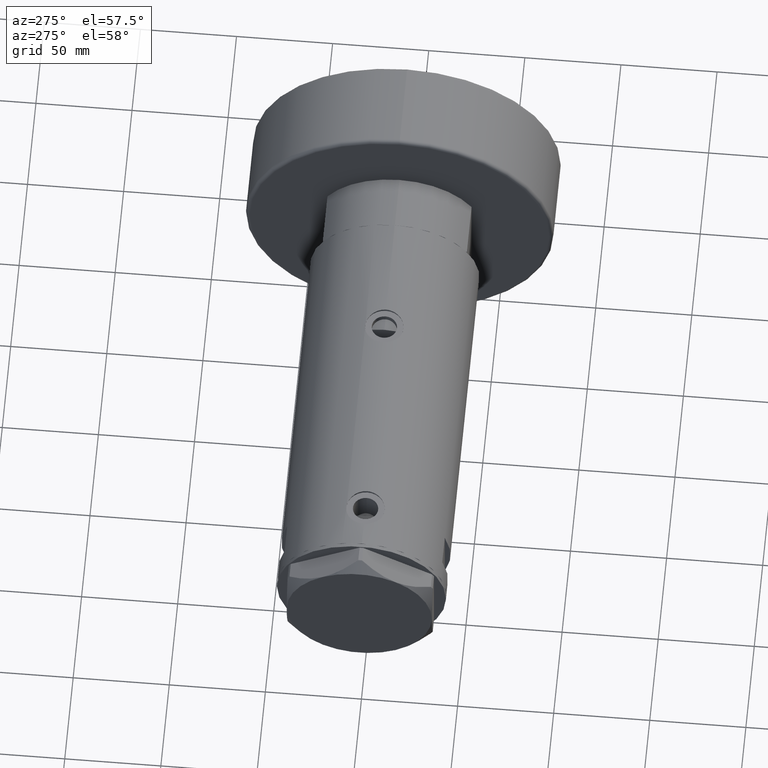
[diagram: clean part render]
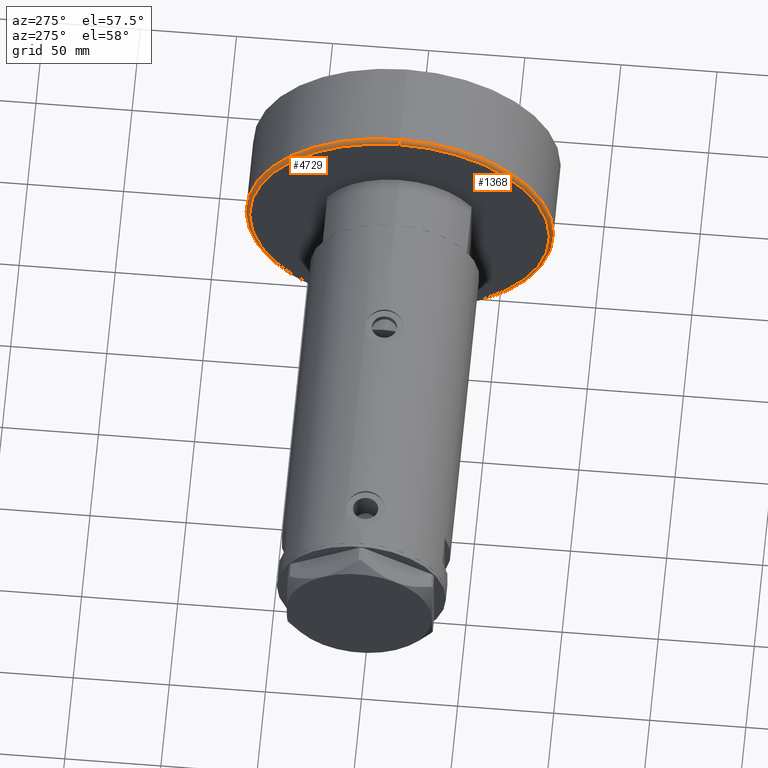
[diagram: same view with one multi-face feature highlighted, each face labeled with its STEP entity id]
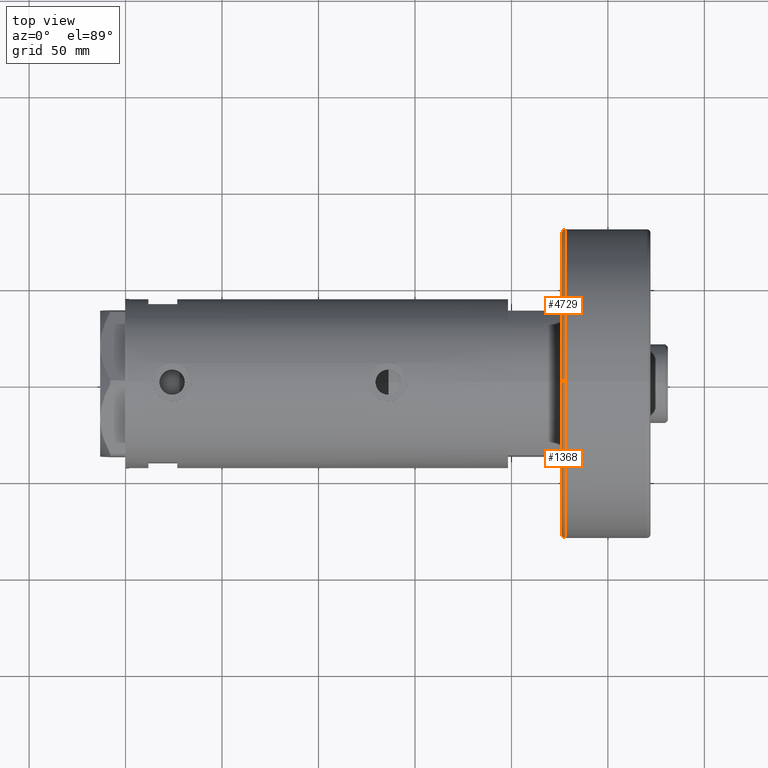
[diagram: same view with one multi-face feature highlighted, each face labeled with its STEP entity id]
A machine part, auxiliary view. The highlighted faces form ONE feature: a constant-radius fillet chain: 2 tangent blend faces with common blend radius 2 mm. The faces share edges in the B-rep.
A second angle (top view) of the same feature is appended — it is thin or edge-on in the first view.
Their STEP definitions:
[1] entity #1368 (Torus):
#10 = EDGE_LOOP ( 'NONE', ( #5776, #6115, #87, #2182 ) ) ;
#68 = VERTEX_POINT ( 'NONE', #4587 ) ;
#87 = ORIENTED_EDGE ( 'NONE', *, *, #2439, .T. ) ;
#331 = VERTEX_POINT ( 'NONE', #1928 ) ;
#403 = CARTESIAN_POINT ( 'NONE',  ( 0.000000000000000000, 0.000000000000000000, 0.000000000000000000 ) ) ;
#544 = TOROIDAL_SURFACE ( 'NONE', #4249, 78.00000000000000000, 2.000000000000000000 ) ;
#576 = CARTESIAN_POINT ( 'NONE',  ( 78.00000000000000000, 0.000000000000000000, 0.000000000000000000 ) ) ;
#1042 = DIRECTION ( 'NONE',  ( 1.224646799147353207E-16, 1.000000000000000000, -0.000000000000000000 ) ) ;
#1217 = EDGE_CURVE ( 'NONE', #5493, #331, #3326, .T. ) ;
#1368 = ADVANCED_FACE ( 'NONE', ( #4616 ), #544, .T. ) ;
#1514 = CARTESIAN_POINT ( 'NONE',  ( -78.00000000000000000, 9.552245033349355756E-15, 2.000000000000001776 ) ) ;
#1737 = VERTEX_POINT ( 'NONE', #576 ) ;
#1888 = CIRCLE ( 'NONE', #3448, 80.00000000000000000 ) ;
#1928 = CARTESIAN_POINT ( 'NONE',  ( -80.00000000000000000, 0.000000000000000000, 2.000000000000001776 ) ) ;
#2041 = CARTESIAN_POINT ( 'NONE',  ( 0.000000000000000000, 0.000000000000000000, 2.000000000000001776 ) ) ;
#2167 = CARTESIAN_POINT ( 'NONE',  ( 78.00000000000000000, 0.000000000000000000, 2.000000000000001776 ) ) ;
#2182 = ORIENTED_EDGE ( 'NONE', *, *, #2837, .F. ) ;
#2423 = DIRECTION ( 'NONE',  ( 1.000000000000000000, 0.000000000000000000, 0.000000000000000000 ) ) ;
#2439 = EDGE_CURVE ( 'NONE', #1737, #68, #3535, .T. ) ;
#2837 = EDGE_CURVE ( 'NONE', #331, #68, #1888, .T. ) ;
#3067 = DIRECTION ( 'NONE',  ( 0.000000000000000000, -1.000000000000000000, 0.000000000000000000 ) ) ;
#3145 = CARTESIAN_POINT ( 'NONE',  ( -78.00000000000000000, 9.674709713264090904E-15, 0.000000000000000000 ) ) ;
#3270 = EDGE_CURVE ( 'NONE', #1737, #5493, #4895, .T. ) ;
#3326 = CIRCLE ( 'NONE', #4874, 2.000000000000001776 ) ;
#3375 = DIRECTION ( 'NONE',  ( 1.000000000000000000, 0.000000000000000000, 0.000000000000000000 ) ) ;
#3406 = CARTESIAN_POINT ( 'NONE',  ( 0.000000000000000000, 0.000000000000000000, 2.000000000000001776 ) ) ;
#3448 = AXIS2_PLACEMENT_3D ( 'NONE', #2041, #5543, #5052 ) ;
#3535 = CIRCLE ( 'NONE', #3958, 2.000000000000000000 ) ;
#3958 = AXIS2_PLACEMENT_3D ( 'NONE', #2167, #3067, #6008 ) ;
#4167 = AXIS2_PLACEMENT_3D ( 'NONE', #403, #4337, #3375 ) ;
#4249 = AXIS2_PLACEMENT_3D ( 'NONE', #3406, #6327, #2423 ) ;
#4337 = DIRECTION ( 'NONE',  ( -0.000000000000000000, -0.000000000000000000, -1.000000000000000000 ) ) ;
#4463 = DIRECTION ( 'NONE',  ( -1.000000000000000000, 1.224646799147349509E-16, 0.000000000000000000 ) ) ;
#4587 = CARTESIAN_POINT ( 'NONE',  ( 80.00000000000000000, 9.797174393178826052E-15, 2.000000000000001776 ) ) ;
#4616 = FACE_OUTER_BOUND ( 'NONE', #10, .T. ) ;
#4874 = AXIS2_PLACEMENT_3D ( 'NONE', #1514, #1042, #4463 ) ;
#4895 = CIRCLE ( 'NONE', #4167, 78.00000000000000000 ) ;
#5052 = DIRECTION ( 'NONE',  ( 1.000000000000000000, 0.000000000000000000, 0.000000000000000000 ) ) ;
#5493 = VERTEX_POINT ( 'NONE', #3145 ) ;
#5543 = DIRECTION ( 'NONE',  ( 0.000000000000000000, 0.000000000000000000, 1.000000000000000000 ) ) ;
#5776 = ORIENTED_EDGE ( 'NONE', *, *, #1217, .F. ) ;
#6008 = DIRECTION ( 'NONE',  ( 0.000000000000000000, 0.000000000000000000, -1.000000000000000000 ) ) ;
#6115 = ORIENTED_EDGE ( 'NONE', *, *, #3270, .F. ) ;
#6327 = DIRECTION ( 'NONE',  ( 0.000000000000000000, 0.000000000000000000, 1.000000000000000000 ) ) ;
[2] entity #4729 (Torus):
#68 = VERTEX_POINT ( 'NONE', #4587 ) ;
#156 = ORIENTED_EDGE ( 'NONE', *, *, #1217, .T. ) ;
#331 = VERTEX_POINT ( 'NONE', #1928 ) ;
#399 = ORIENTED_EDGE ( 'NONE', *, *, #2439, .F. ) ;
#576 = CARTESIAN_POINT ( 'NONE',  ( 78.00000000000000000, 0.000000000000000000, 0.000000000000000000 ) ) ;
#904 = DIRECTION ( 'NONE',  ( 1.000000000000000000, 0.000000000000000000, 0.000000000000000000 ) ) ;
#1042 = DIRECTION ( 'NONE',  ( 1.224646799147353207E-16, 1.000000000000000000, -0.000000000000000000 ) ) ;
#1217 = EDGE_CURVE ( 'NONE', #5493, #331, #3326, .T. ) ;
#1514 = CARTESIAN_POINT ( 'NONE',  ( -78.00000000000000000, 9.552245033349355756E-15, 2.000000000000001776 ) ) ;
#1563 = AXIS2_PLACEMENT_3D ( 'NONE', #5332, #6234, #904 ) ;
#1737 = VERTEX_POINT ( 'NONE', #576 ) ;
#1928 = CARTESIAN_POINT ( 'NONE',  ( -80.00000000000000000, 0.000000000000000000, 2.000000000000001776 ) ) ;
#2036 = ORIENTED_EDGE ( 'NONE', *, *, #3869, .F. ) ;
#2082 = CIRCLE ( 'NONE', #1563, 80.00000000000000000 ) ;
#2167 = CARTESIAN_POINT ( 'NONE',  ( 78.00000000000000000, 0.000000000000000000, 2.000000000000001776 ) ) ;
#2208 = AXIS2_PLACEMENT_3D ( 'NONE', #3446, #2365, #3835 ) ;
#2248 = EDGE_CURVE ( 'NONE', #68, #331, #2082, .T. ) ;
#2365 = DIRECTION ( 'NONE',  ( 0.000000000000000000, 0.000000000000000000, 1.000000000000000000 ) ) ;
#2439 = EDGE_CURVE ( 'NONE', #1737, #68, #3535, .T. ) ;
#2731 = CARTESIAN_POINT ( 'NONE',  ( 0.000000000000000000, 0.000000000000000000, 0.000000000000000000 ) ) ;
#2828 = DIRECTION ( 'NONE',  ( -0.000000000000000000, -0.000000000000000000, -1.000000000000000000 ) ) ;
#2868 = DIRECTION ( 'NONE',  ( 1.000000000000000000, 0.000000000000000000, 0.000000000000000000 ) ) ;
#3067 = DIRECTION ( 'NONE',  ( 0.000000000000000000, -1.000000000000000000, 0.000000000000000000 ) ) ;
#3145 = CARTESIAN_POINT ( 'NONE',  ( -78.00000000000000000, 9.674709713264090904E-15, 0.000000000000000000 ) ) ;
#3326 = CIRCLE ( 'NONE', #4874, 2.000000000000001776 ) ;
#3385 = FACE_OUTER_BOUND ( 'NONE', #3515, .T. ) ;
#3446 = CARTESIAN_POINT ( 'NONE',  ( 0.000000000000000000, 0.000000000000000000, 2.000000000000001776 ) ) ;
#3515 = EDGE_LOOP ( 'NONE', ( #2036, #156, #5308, #399 ) ) ;
#3535 = CIRCLE ( 'NONE', #3958, 2.000000000000000000 ) ;
#3835 = DIRECTION ( 'NONE',  ( 1.000000000000000000, 0.000000000000000000, 0.000000000000000000 ) ) ;
#3869 = EDGE_CURVE ( 'NONE', #5493, #1737, #6146, .T. ) ;
#3958 = AXIS2_PLACEMENT_3D ( 'NONE', #2167, #3067, #6008 ) ;
#4463 = DIRECTION ( 'NONE',  ( -1.000000000000000000, 1.224646799147349509E-16, 0.000000000000000000 ) ) ;
#4494 = TOROIDAL_SURFACE ( 'NONE', #2208, 78.00000000000000000, 2.000000000000000000 ) ;
#4587 = CARTESIAN_POINT ( 'NONE',  ( 80.00000000000000000, 9.797174393178826052E-15, 2.000000000000001776 ) ) ;
#4729 = ADVANCED_FACE ( 'NONE', ( #3385 ), #4494, .T. ) ;
#4874 = AXIS2_PLACEMENT_3D ( 'NONE', #1514, #1042, #4463 ) ;
#5308 = ORIENTED_EDGE ( 'NONE', *, *, #2248, .F. ) ;
#5332 = CARTESIAN_POINT ( 'NONE',  ( 0.000000000000000000, 0.000000000000000000, 2.000000000000001776 ) ) ;
#5493 = VERTEX_POINT ( 'NONE', #3145 ) ;
#5623 = AXIS2_PLACEMENT_3D ( 'NONE', #2731, #2828, #2868 ) ;
#6008 = DIRECTION ( 'NONE',  ( 0.000000000000000000, 0.000000000000000000, -1.000000000000000000 ) ) ;
#6146 = CIRCLE ( 'NONE', #5623, 78.00000000000000000 ) ;
#6234 = DIRECTION ( 'NONE',  ( 0.000000000000000000, 0.000000000000000000, 1.000000000000000000 ) ) ;